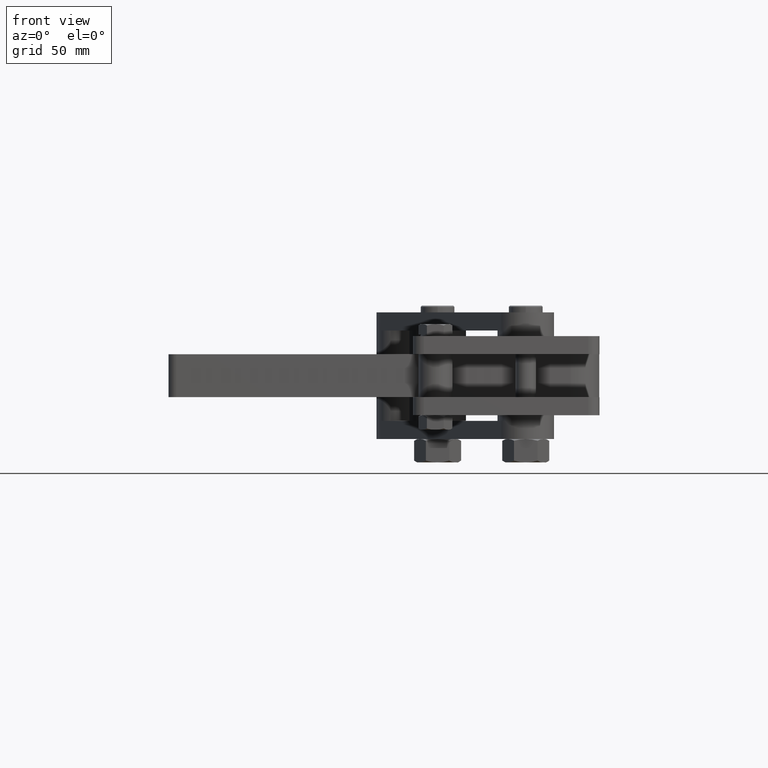
[diagram: clean part render]
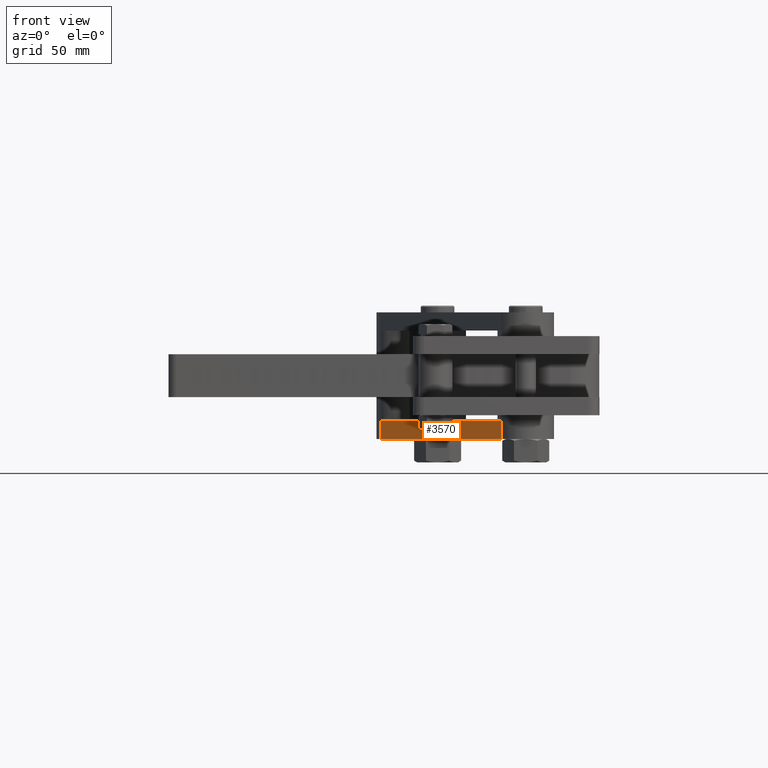
[diagram: same view with one face highlighted and labeled with its STEP entity id]
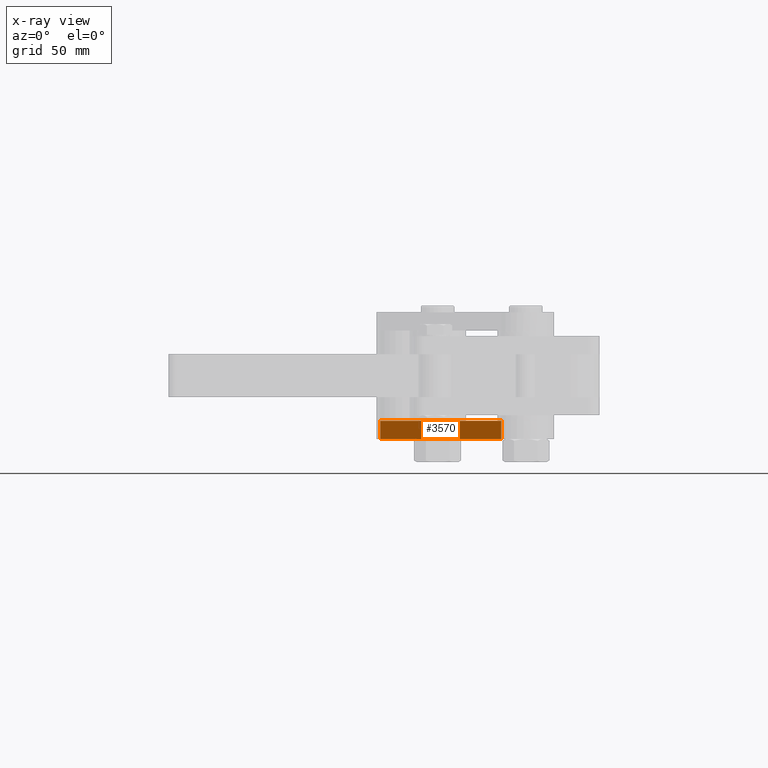
[diagram: x-ray of the same camera — body ghosted, the highlighted face saturated]
A machine part, front view. The second image highlights one B-rep face of the part: STEP entity #3570.
The next image is the same camera in x-ray: the body ghosted, the highlighted face saturated — about 11% of this face is hidden behind the body in this view.
In plain terms, the highlighted planar face has unit normal (0.866, 0.5, 0).
Its self-contained STEP definition (entity closure, byte-faithful):
#65 = CARTESIAN_POINT ( 'NONE',  ( -19.32572498016055500, 127.3144149189054700, -37.50000000000000700 ) ) ;
#346 = CARTESIAN_POINT ( 'NONE',  ( -19.32572498016056500, 127.3144149189054700, -29.50000000000000400 ) ) ;
#425 = ORIENTED_EDGE ( 'NONE', *, *, #4372, .F. ) ;
#572 = DIRECTION ( 'NONE',  ( 0.5000040831857014400, -0.8660230463432402300, 0.0000000000000000000 ) ) ;
#669 = CARTESIAN_POINT ( 'NONE',  ( 34.17471192070951200, 34.64994896017874000, -37.50000000000000700 ) ) ;
#714 = VERTEX_POINT ( 'NONE', #346 ) ;
#838 = VECTOR ( 'NONE', #572, 1000.000000000000200 ) ;
#861 = DIRECTION ( 'NONE',  ( 0.8660230463432403400, 0.5000040831857015500, 0.0000000000000000000 ) ) ;
#1117 = CARTESIAN_POINT ( 'NONE',  ( 34.17471192070950500, 34.64994896017874000, -29.50000000000000400 ) ) ;
#1183 = CARTESIAN_POINT ( 'NONE',  ( 34.17471192070951200, 34.64994896017874000, -37.50000000000000700 ) ) ;
#1353 = CARTESIAN_POINT ( 'NONE',  ( 34.17471192070951200, 34.64994896017874000, -29.50000000000000400 ) ) ;
#1529 = DIRECTION ( 'NONE',  ( 0.0000000000000000000, 0.0000000000000000000, 1.000000000000000000 ) ) ;
#1960 = VECTOR ( 'NONE', #2497, 1000.000000000000200 ) ;
#2216 = LINE ( 'NONE', #65, #3746 ) ;
#2343 = VERTEX_POINT ( 'NONE', #6103 ) ;
#2497 = DIRECTION ( 'NONE',  ( 0.5000040831857014400, -0.8660230463432402300, 0.0000000000000000000 ) ) ;
#2549 = CARTESIAN_POINT ( 'NONE',  ( 34.17471192070951200, 34.64994896017874000, -29.50000000000000400 ) ) ;
#2576 = EDGE_CURVE ( 'NONE', #4715, #7421, #3934, .T. ) ;
#3009 = LINE ( 'NONE', #2549, #5889 ) ;
#3046 = ORIENTED_EDGE ( 'NONE', *, *, #6818, .F. ) ;
#3217 = VECTOR ( 'NONE', #1529, 1000.000000000000000 ) ;
#3486 = LINE ( 'NONE', #1353, #1960 ) ;
#3532 = DIRECTION ( 'NONE',  ( 0.0000000000000000000, 0.0000000000000000000, 1.000000000000000000 ) ) ;
#3570 = ADVANCED_FACE ( 'NONE', ( #6999 ), #7168, .F. ) ;
#3746 = VECTOR ( 'NONE', #3532, 1000.000000000000000 ) ;
#3898 = EDGE_CURVE ( 'NONE', #2343, #5992, #3486, .T. ) ;
#3934 = LINE ( 'NONE', #1183, #838 ) ;
#4018 = ORIENTED_EDGE ( 'NONE', *, *, #2576, .T. ) ;
#4156 = ORIENTED_EDGE ( 'NONE', *, *, #5860, .T. ) ;
#4267 = DIRECTION ( 'NONE',  ( 0.5000040831857014400, -0.8660230463432402300, 0.0000000000000000000 ) ) ;
#4343 = CARTESIAN_POINT ( 'NONE',  ( 34.17471192070951200, 34.64994896017874000, -37.50000000000000700 ) ) ;
#4372 = EDGE_CURVE ( 'NONE', #4715, #714, #2216, .T. ) ;
#4715 = VERTEX_POINT ( 'NONE', #6782 ) ;
#4751 = LINE ( 'NONE', #6140, #3217 ) ;
#4912 = DIRECTION ( 'NONE',  ( 0.0000000000000000000, 0.0000000000000000000, -1.000000000000000000 ) ) ;
#5238 = AXIS2_PLACEMENT_3D ( 'NONE', #4343, #861, #4912 ) ;
#5860 = EDGE_CURVE ( 'NONE', #7421, #5992, #4751, .T. ) ;
#5889 = VECTOR ( 'NONE', #4267, 1000.000000000000200 ) ;
#5992 = VERTEX_POINT ( 'NONE', #1117 ) ;
#6103 = CARTESIAN_POINT ( 'NONE',  ( -4.825606567775451200, 102.1997465749517300, -29.50000000000000400 ) ) ;
#6107 = ORIENTED_EDGE ( 'NONE', *, *, #3898, .F. ) ;
#6140 = CARTESIAN_POINT ( 'NONE',  ( 34.17471192070951200, 34.64994896017874000, -37.50000000000000700 ) ) ;
#6782 = CARTESIAN_POINT ( 'NONE',  ( -19.32572498016055500, 127.3144149189054700, -37.50000000000000700 ) ) ;
#6818 = EDGE_CURVE ( 'NONE', #714, #2343, #3009, .T. ) ;
#6999 = FACE_OUTER_BOUND ( 'NONE', #7143, .T. ) ;
#7143 = EDGE_LOOP ( 'NONE', ( #3046, #425, #4018, #4156, #6107 ) ) ;
#7168 = PLANE ( 'NONE',  #5238 ) ;
#7421 = VERTEX_POINT ( 'NONE', #669 ) ;